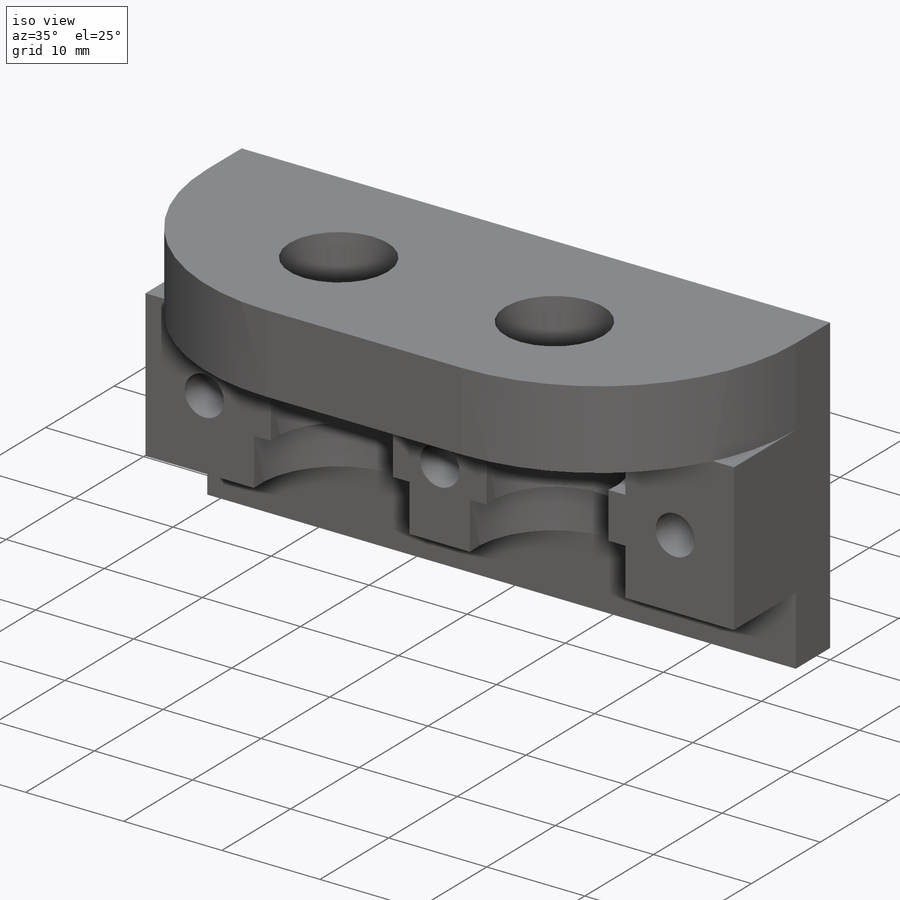
[diagram: iso view]
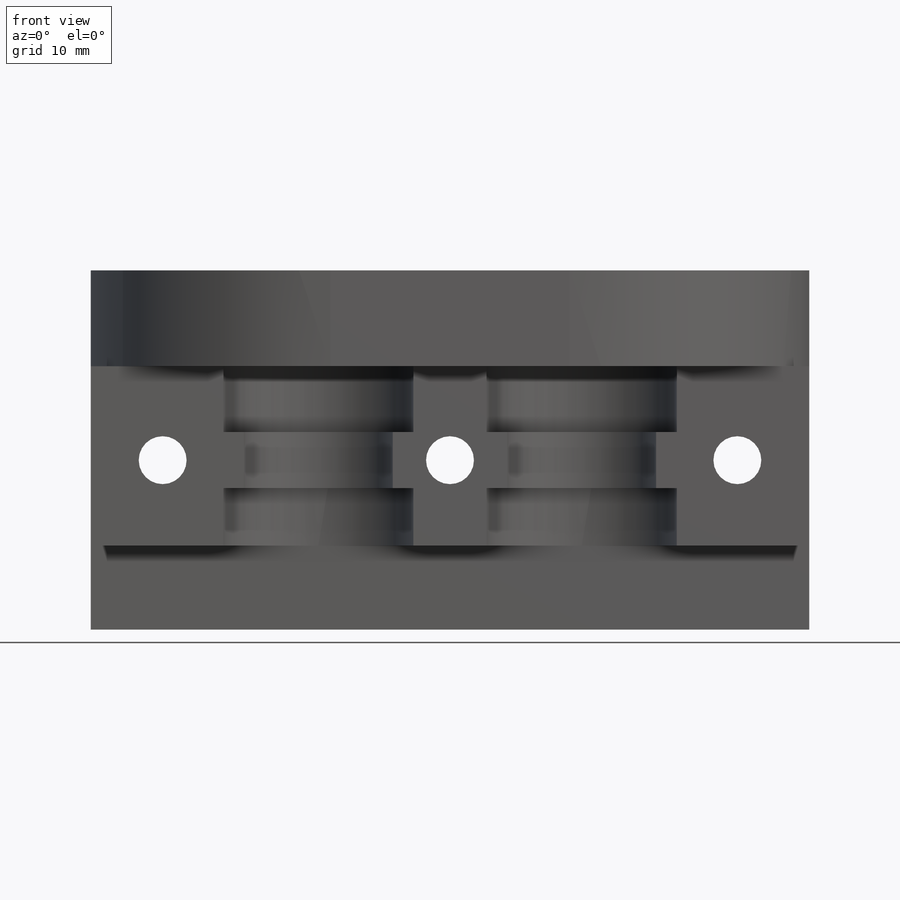
[diagram: front view]
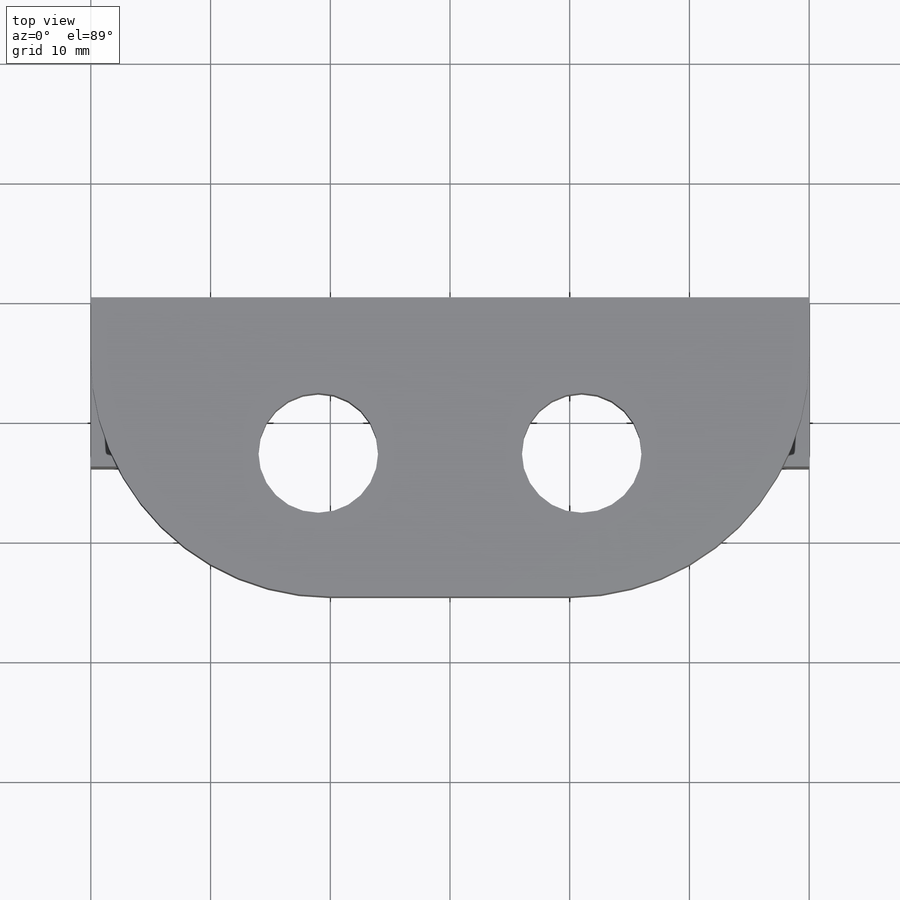
[diagram: top view]
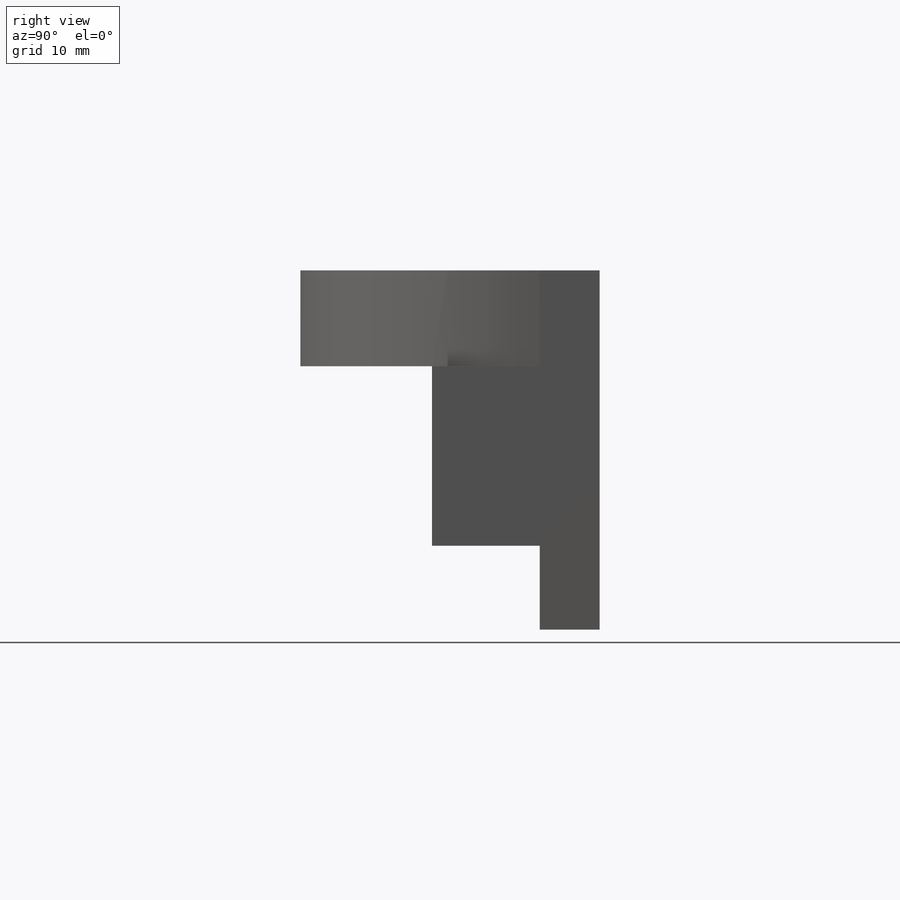
[diagram: right view]
SOLIDWORKS PART (.sldprt)
format: sldprt  version: not decoded by parser v0  size: 288,768 bytes
history: native  units: mm
features: sketch x9, cut_extrude x5, plane x4, extrude x4, material x1, fillet x1 (+9 scaffold rows collapsed)
feature tree (33):
  scaffold x9  (default folders/planes/origin — collapsed)
  material  "Materiale <non specificato>"
  plane  "Piano frontale"
  plane  "Piano superiore"
  plane  "Piano destro"
  sketch  "Schizzo1"  dims[D1=60.0mm D2=30.0mm]
  extrude  "Estrusione-Estrusione1"  Depth=5mm
  sketch  "Schizzo2"  dims[D1=7.0mm D2=15.0mm]
  extrude  "Estrusione-Estrusione2"  Depth=20mm
  sketch  "Schizzo3"  dims[D2=10.0mm D3=13.0mm D1=11.0mm]
  cut_extrude  "Taglio-Estrusione1"  [1 undecoded]
  fillet  "Raccordo1"  Radius=20mm
  sketch  "Schizzo4"  dims[D1=15.0mm]
  extrude  "Estrusione-Estrusione3"  Depth=10mm
  sketch  "Schizzo6"  dims[D1=16.0mm]
  cut_extrude  "Taglio-Estrusione2"  Depth=15mm
  plane  "Piano1"
  sketch  "Schizzo8"  dims[D1=5.5mm D2=4.7mm D3=4.7mm]
  extrude  "Estrusione-Estrusione4"  [1 undecoded]
  sketch  "Schizzo9"  dims[D1=~6.446843mm]
  cut_extrude  "Taglio-Estrusione3"  Depth=5mm
  sketch  "Schizzo10"  dims[D1=~2.045764mm]
  cut_extrude  "Taglio-Estrusione4"  [1 undecoded]
  sketch  "Schizzo11"
  cut_extrude  "Taglio-Estrusione5"  Depth=1mm
decode coverage: 15 of 19 modeling features carry decoded parameters
note: ~ marks probable driven/reference dimensions
note: 3 parameter values undecoded
summary: no parameter record found for 3 features
note: suppression state not decoded; provenance and decode notes live in map.json
